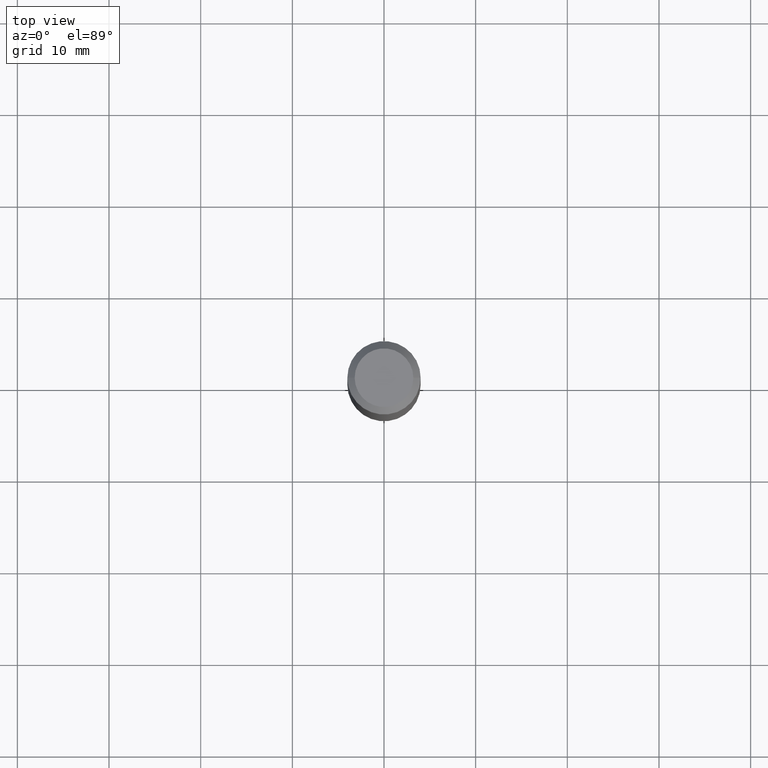
[diagram: clean part render]
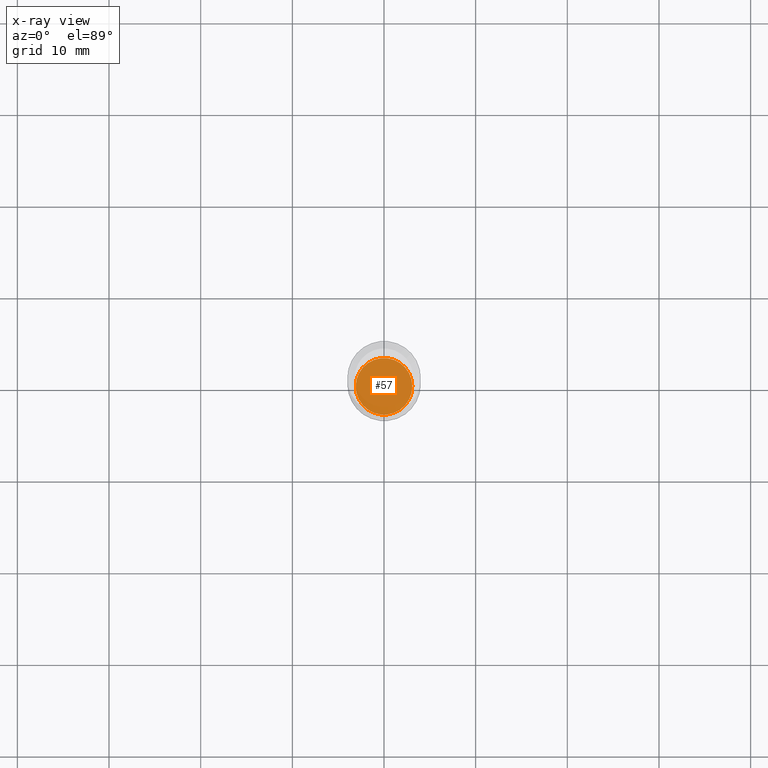
[diagram: x-ray — body ghosted, one internal face saturated and labeled with its STEP entity id]
A machine part, top view, then the same camera in x-ray: the body is ghosted and one INTERNAL B-rep face — a face not visible from any outside direction — is saturated and labeled: STEP entity #57.
In plain terms, the highlighted planar face has unit normal (-0, 0, 1).
Its self-contained STEP definition (entity closure, byte-faithful):
#9 = DIRECTION ( 'NONE',  ( -2.438088387897960049E-29, 3.491481338843145188E-15, 1.000000000000000000 ) ) ;
#10 = PLANE ( 'NONE',  #392 ) ;
#24 = CARTESIAN_POINT ( 'NONE',  ( 5.295173606032675561E-29, -7.560104542997063911E-15, -2.165299999999999780 ) ) ;
#57 = ADVANCED_FACE ( 'NONE', ( #357 ), #10, .F. ) ;
#63 = CIRCLE ( 'NONE', #247, 0.1215500000000000053 ) ;
#96 = AXIS2_PLACEMENT_3D ( 'NONE', #24, #473, #292 ) ;
#123 = CARTESIAN_POINT ( 'NONE',  ( 5.295173606032675561E-29, -7.560104542997063911E-15, -2.165299999999999780 ) ) ;
#128 = VERTEX_POINT ( 'NONE', #165 ) ;
#148 = CIRCLE ( 'NONE', #96, 0.1215500000000000053 ) ;
#165 = CARTESIAN_POINT ( 'NONE',  ( -0.1215500000000000053, -6.693790620506550601E-15, -2.165299999999999780 ) ) ;
#166 = ORIENTED_EDGE ( 'NONE', *, *, #397, .F. ) ;
#247 = AXIS2_PLACEMENT_3D ( 'NONE', #123, #325, #317 ) ;
#292 = DIRECTION ( 'NONE',  ( 1.000000000000000000, -6.982962677686266711E-15, 0.000000000000000000 ) ) ;
#317 = DIRECTION ( 'NONE',  ( 1.000000000000000000, -6.982962677686266711E-15, 0.000000000000000000 ) ) ;
#324 = CARTESIAN_POINT ( 'NONE',  ( 5.295173606032675561E-29, -7.560104542997063911E-15, -2.165299999999999780 ) ) ;
#325 = DIRECTION ( 'NONE',  ( -2.445468806185136597E-29, 3.491481338843145583E-15, 1.000000000000000000 ) ) ;
#357 = FACE_OUTER_BOUND ( 'NONE', #382, .T. ) ;
#382 = EDGE_LOOP ( 'NONE', ( #166, #419 ) ) ;
#390 = VERTEX_POINT ( 'NONE', #416 ) ;
#392 = AXIS2_PLACEMENT_3D ( 'NONE', #324, #9, #426 ) ;
#397 = EDGE_CURVE ( 'NONE', #390, #128, #148, .T. ) ;
#416 = CARTESIAN_POINT ( 'NONE',  ( 0.1215500000000000053, -8.408883656469829712E-15, -2.165299999999999780 ) ) ;
#419 = ORIENTED_EDGE ( 'NONE', *, *, #484, .F. ) ;
#426 = DIRECTION ( 'NONE',  ( 1.000000000000000000, -6.982962677686265922E-15, 4.876176775795935793E-29 ) ) ;
#473 = DIRECTION ( 'NONE',  ( -2.445468806185136597E-29, 3.491481338843145583E-15, 1.000000000000000000 ) ) ;
#484 = EDGE_CURVE ( 'NONE', #128, #390, #63, .T. ) ;